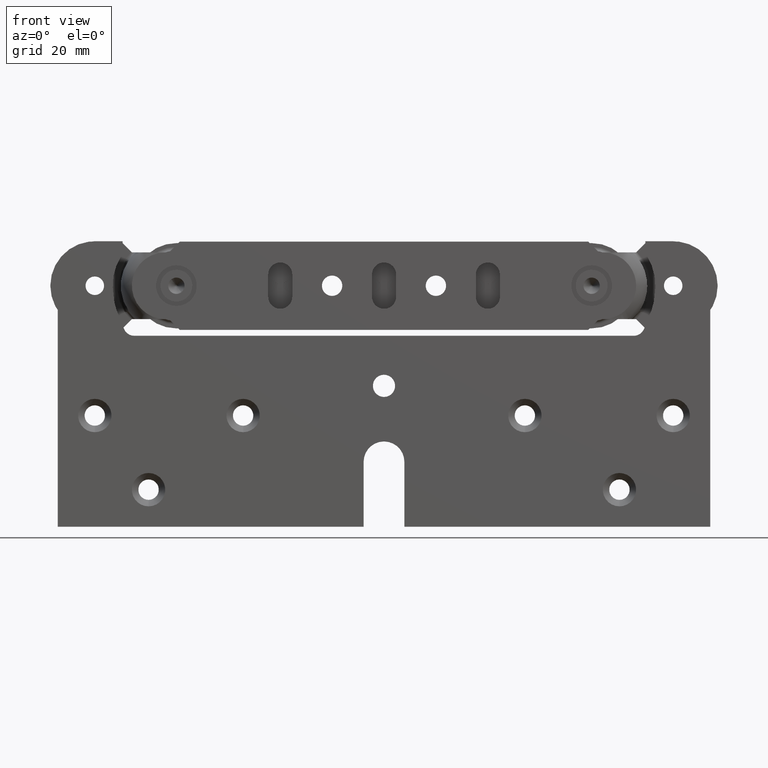
[diagram: clean part render]
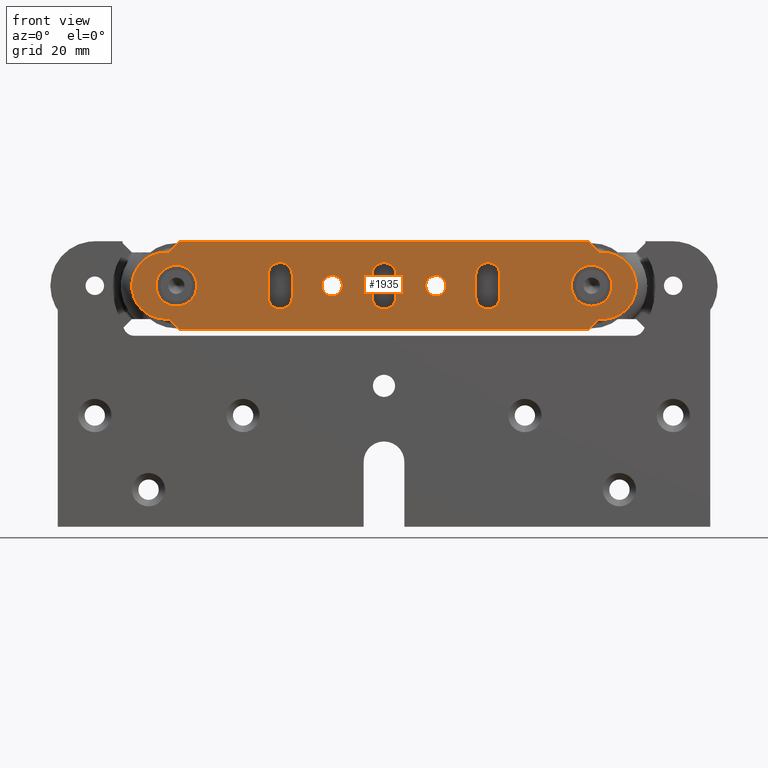
[diagram: same view with one face highlighted and labeled with its STEP entity id]
A machine part, front view. The second image highlights one B-rep face of the part: STEP entity #1935.
In plain terms, the highlighted planar face has unit normal (0, 1, 0).
Its self-contained STEP definition (entity closure, byte-faithful):
#13 = CIRCLE ( 'NONE', #10494, 3.249999999999988898 ) ;
#18 = VERTEX_POINT ( 'NONE', #897 ) ;
#25 = ORIENTED_EDGE ( 'NONE', *, *, #5241, .T. ) ;
#114 = DIRECTION ( 'NONE',  ( 0.000000000000000000, 1.000000000000000000, 0.000000000000000000 ) ) ;
#138 = CIRCLE ( 'NONE', #10620, 5.499999999999998224 ) ;
#189 = DIRECTION ( 'NONE',  ( 0.000000000000000000, 1.000000000000000000, 0.000000000000000000 ) ) ;
#192 = VECTOR ( 'NONE', #4362, 1000.000000000000000 ) ;
#250 = VERTEX_POINT ( 'NONE', #7975 ) ;
#251 = CARTESIAN_POINT ( 'NONE',  ( -67.08913867347112614, 0.000000000000000000, 3.989431880473656378 ) ) ;
#261 = ORIENTED_EDGE ( 'NONE', *, *, #5137, .T. ) ;
#292 = EDGE_CURVE ( 'NONE', #9603, #2884, #10473, .T. ) ;
#390 = VERTEX_POINT ( 'NONE', #10105 ) ;
#403 = EDGE_LOOP ( 'NONE', ( #11651, #6756 ) ) ;
#462 = LINE ( 'NONE', #9818, #6329 ) ;
#498 = VERTEX_POINT ( 'NONE', #8509 ) ;
#534 = CARTESIAN_POINT ( 'NONE',  ( 14.00000000000000000, 0.000000000000000000, -2.750000000000009326 ) ) ;
#617 = CARTESIAN_POINT ( 'NONE',  ( 28.00000000000000355, -1.157291225194246046E-15, -3.000000000000008882 ) ) ;
#629 = CARTESIAN_POINT ( 'NONE',  ( 66.63074449377211295, 2.063901716710476627E-26, -4.944806703775358692 ) ) ;
#638 = EDGE_LOOP ( 'NONE', ( #2999, #2861, #4290, #8538, #2212 ) ) ;
#644 = EDGE_CURVE ( 'NONE', #763, #2277, #6263, .T. ) ;
#740 = CARTESIAN_POINT ( 'NONE',  ( -31.25000000000000000, 0.000000000000000000, 2.999999999999991562 ) ) ;
#763 = VERTEX_POINT ( 'NONE', #4279 ) ;
#828 = CARTESIAN_POINT ( 'NONE',  ( 28.00000000000000355, -1.157291225194246046E-15, -6.249999999999997335 ) ) ;
#836 = CIRCLE ( 'NONE', #2000, 3.249999999999988898 ) ;
#856 = DIRECTION ( 'NONE',  ( -0.000000000000000000, -1.000000000000000000, -0.000000000000000000 ) ) ;
#887 = VERTEX_POINT ( 'NONE', #534 ) ;
#897 = CARTESIAN_POINT ( 'NONE',  ( -58.00000000000013500, 0.000000000000000000, 9.000000000000001776 ) ) ;
#925 = DIRECTION ( 'NONE',  ( 0.000000000000000000, 0.000000000000000000, -1.000000000000000000 ) ) ;
#946 = CARTESIAN_POINT ( 'NONE',  ( -3.249999999999975131, 0.000000000000000000, -3.000000000000008882 ) ) ;
#954 = DIRECTION ( 'NONE',  ( -0.000000000000000000, -1.000000000000000000, -0.000000000000000000 ) ) ;
#1080 = DIRECTION ( 'NONE',  ( -1.000000000000000000, 0.000000000000000000, 0.000000000000000000 ) ) ;
#1081 = VERTEX_POINT ( 'NONE', #10873 ) ;
#1231 = CARTESIAN_POINT ( 'NONE',  ( -61.33141326523641368, 0.000000000000000000, -8.712843378036756903 ) ) ;
#1276 = VECTOR ( 'NONE', #8895, 1000.000000000000000 ) ;
#1298 = CARTESIAN_POINT ( 'NONE',  ( 59.82218478080638135, -1.249353701446252122E-25, 8.999328210712842946 ) ) ;
#1375 = DIRECTION ( 'NONE',  ( -0.000000000000000000, -1.000000000000000000, -0.000000000000000000 ) ) ;
#1417 = CARTESIAN_POINT ( 'NONE',  ( -67.08942090353009746, -0.000000000000000000, -3.988926842928645744 ) ) ;
#1430 = EDGE_CURVE ( 'NONE', #3318, #11327, #10368, .T. ) ;
#1432 = VERTEX_POINT ( 'NONE', #5766 ) ;
#1507 = DIRECTION ( 'NONE',  ( 0.000000000000000000, 0.000000000000000000, -1.000000000000000000 ) ) ;
#1540 = EDGE_CURVE ( 'NONE', #6197, #11327, #4412, .T. ) ;
#1549 = CARTESIAN_POINT ( 'NONE',  ( 63.85961704645576020, -3.645276477764019047E-26, 7.685277940896694915 ) ) ;
#1725 = CARTESIAN_POINT ( 'NONE',  ( -58.00000000000013500, 0.000000000000000000, 9.000000000000001776 ) ) ;
#1745 = LINE ( 'NONE', #9020, #192 ) ;
#1853 = ORIENTED_EDGE ( 'NONE', *, *, #7349, .T. ) ;
#1890 = EDGE_CURVE ( 'NONE', #10086, #887, #9358, .T. ) ;
#1901 = EDGE_CURVE ( 'NONE', #3105, #3667, #2609, .T. ) ;
#1908 = DIRECTION ( 'NONE',  ( -0.000000000000000000, -1.000000000000000000, -0.000000000000000000 ) ) ;
#1928 = CARTESIAN_POINT ( 'NONE',  ( -66.15216632105004635, 0.000000000000000000, 5.493664361256590745 ) ) ;
#1935 = ADVANCED_FACE ( 'NONE', ( #7862, #2485, #6246, #4420, #7986, #5161, #6191, #2595 ), #10856, .F. ) ;
#2000 = AXIS2_PLACEMENT_3D ( 'NONE', #617, #9966, #2562 ) ;
#2022 = EDGE_CURVE ( 'NONE', #1081, #4846, #11649, .T. ) ;
#2029 = VERTEX_POINT ( 'NONE', #946 ) ;
#2042 = VERTEX_POINT ( 'NONE', #828 ) ;
#2065 = CARTESIAN_POINT ( 'NONE',  ( 58.00000000000013500, 0.000000000000000000, 9.000000000000001776 ) ) ;
#2126 = EDGE_CURVE ( 'NONE', #3059, #390, #5091, .T. ) ;
#2134 = DIRECTION ( 'NONE',  ( 0.000000000000000000, 0.000000000000000000, -1.000000000000000000 ) ) ;
#2146 = CARTESIAN_POINT ( 'NONE',  ( -67.53950502998038985, 0.000000000000000000, -2.901103544300949633 ) ) ;
#2177 = LINE ( 'NONE', #4056, #7626 ) ;
#2189 = AXIS2_PLACEMENT_3D ( 'NONE', #8936, #11686, #11923 ) ;
#2212 = ORIENTED_EDGE ( 'NONE', *, *, #5303, .F. ) ;
#2213 = CARTESIAN_POINT ( 'NONE',  ( -64.48932725637970975, 0.000000000000000000, -7.156316161389725927 ) ) ;
#2219 = DIRECTION ( 'NONE',  ( 0.000000000000000000, 1.000000000000000000, 0.000000000000000000 ) ) ;
#2269 = DIRECTION ( 'NONE',  ( 0.000000000000000000, 0.000000000000000000, -1.000000000000000000 ) ) ;
#2277 = VERTEX_POINT ( 'NONE', #10022 ) ;
#2301 = CARTESIAN_POINT ( 'NONE',  ( 0.000000000000000000, -1.157291225194246046E-15, -3.000000000000008882 ) ) ;
#2336 = CARTESIAN_POINT ( 'NONE',  ( -60.17363107597780214, -0.000000000000000000, -8.942031244177568894 ) ) ;
#2356 = CIRCLE ( 'NONE', #4666, 3.249999999999988898 ) ;
#2394 = CARTESIAN_POINT ( 'NONE',  ( -66.15298966305292083, -0.000000000000000000, -5.492554392519242157 ) ) ;
#2426 = CARTESIAN_POINT ( 'NONE',  ( -58.00000000000013500, 0.000000000000000000, -9.000000000000001776 ) ) ;
#2457 = CARTESIAN_POINT ( 'NONE',  ( 68.00000000000032685, 2.063901716710476627E-26, -1.295906966939351923 ) ) ;
#2465 = CARTESIAN_POINT ( 'NONE',  ( 0.000000000000000000, -1.157291225194246046E-15, -3.000000000000008882 ) ) ;
#2485 = FACE_BOUND ( 'NONE', #5615, .T. ) ;
#2533 = DIRECTION ( 'NONE',  ( -0.000000000000000000, -1.000000000000000000, -0.000000000000000000 ) ) ;
#2536 = DIRECTION ( 'NONE',  ( 0.000000000000000000, -0.000000000000000000, 1.000000000000000000 ) ) ;
#2537 = VERTEX_POINT ( 'NONE', #9778 ) ;
#2562 = DIRECTION ( 'NONE',  ( 0.000000000000000000, 0.000000000000000000, -1.000000000000000000 ) ) ;
#2579 = CIRCLE ( 'NONE', #4723, 3.249999999999988898 ) ;
#2586 = AXIS2_PLACEMENT_3D ( 'NONE', #6299, #3504, #2536 ) ;
#2595 = FACE_OUTER_BOUND ( 'NONE', #11524, .T. ) ;
#2609 = B_SPLINE_CURVE_WITH_KNOTS ( 'NONE', 3,
 ( #9615, #1298, #8699, #9857, #1549, #4344, #7063, #5257, #10775, #2457, #11748, #629, #8938, #8024, #6165, #4179, #8904, #9819 ),
 .UNSPECIFIED., .F., .F.,
 ( 4, 2, 2, 2, 2, 2, 2, 2, 4 ),
 ( 0.000000000000000000, 0.08761193808473884126, 0.2250746253898257554, 0.3625373126949124059, 0.4999999999999990008, 0.6374626873050855957, 0.7749253746101724127, 0.9123880619152592297, 1.000000000000000000 ),
 .UNSPECIFIED. ) ;
#2715 = CARTESIAN_POINT ( 'NONE',  ( -63.50568478773813297, 0.000000000000000000, 7.812332455624505734 ) ) ;
#2755 = ORIENTED_EDGE ( 'NONE', *, *, #2022, .T. ) ;
#2830 = CARTESIAN_POINT ( 'NONE',  ( -64.49008897876312574, -0.000000000000000000, 7.155888933543343100 ) ) ;
#2861 = ORIENTED_EDGE ( 'NONE', *, *, #5356, .F. ) ;
#2871 = DIRECTION ( 'NONE',  ( 0.000000000000000000, 0.000000000000000000, -1.000000000000000000 ) ) ;
#2884 = VERTEX_POINT ( 'NONE', #3873 ) ;
#2889 = LINE ( 'NONE', #11147, #6546 ) ;
#2893 = CARTESIAN_POINT ( 'NONE',  ( 0.000000000000000000, -1.157291225194246046E-15, -6.249999999999997335 ) ) ;
#2932 = VERTEX_POINT ( 'NONE', #8665 ) ;
#2937 = EDGE_CURVE ( 'NONE', #4121, #5551, #138, .T. ) ;
#2946 = ORIENTED_EDGE ( 'NONE', *, *, #10839, .T. ) ;
#2952 = ORIENTED_EDGE ( 'NONE', *, *, #8455, .T. ) ;
#2999 = ORIENTED_EDGE ( 'NONE', *, *, #11573, .F. ) ;
#3008 = EDGE_LOOP ( 'NONE', ( #11708, #6656, #7764, #2952, #3773 ) ) ;
#3032 = ORIENTED_EDGE ( 'NONE', *, *, #11757, .T. ) ;
#3057 = CARTESIAN_POINT ( 'NONE',  ( -67.99996593793157729, 0.000000000000000000, 0.5884903178352727249 ) ) ;
#3059 = VERTEX_POINT ( 'NONE', #10798 ) ;
#3060 = DIRECTION ( 'NONE',  ( -0.000000000000000000, -0.000000000000000000, -1.000000000000000000 ) ) ;
#3080 = VERTEX_POINT ( 'NONE', #7196 ) ;
#3100 = CARTESIAN_POINT ( 'NONE',  ( -28.00000000000000355, -1.157291225194246046E-15, -3.000000000000008882 ) ) ;
#3105 = VERTEX_POINT ( 'NONE', #11774 ) ;
#3188 = VERTEX_POINT ( 'NONE', #2893 ) ;
#3207 = ORIENTED_EDGE ( 'NONE', *, *, #1890, .T. ) ;
#3240 = CARTESIAN_POINT ( 'NONE',  ( -59.58821667872939543, -0.000000000000000000, -8.999328210712770115 ) ) ;
#3256 = LINE ( 'NONE', #11635, #7673 ) ;
#3302 = CARTESIAN_POINT ( 'NONE',  ( -64.94544805840131119, -0.000000000000000000, -6.782465164837899074 ) ) ;
#3316 = DIRECTION ( 'NONE',  ( 1.000000000000000000, 0.000000000000000000, 0.000000000000000000 ) ) ;
#3318 = VERTEX_POINT ( 'NONE', #6829 ) ;
#3330 = CARTESIAN_POINT ( 'NONE',  ( 58.00000000000013500, 0.000000000000000000, -9.000000000000001776 ) ) ;
#3447 = AXIS2_PLACEMENT_3D ( 'NONE', #2301, #1375, #8776 ) ;
#3499 = CIRCLE ( 'NONE', #9892, 5.499999999999998224 ) ;
#3504 = DIRECTION ( 'NONE',  ( 0.000000000000000000, 1.000000000000000000, 0.000000000000000000 ) ) ;
#3627 = CARTESIAN_POINT ( 'NONE',  ( -60.17378314488630053, -0.000000000000000000, 8.941932463536899078 ) ) ;
#3667 = VERTEX_POINT ( 'NONE', #9542 ) ;
#3678 = DIRECTION ( 'NONE',  ( 1.000000000000000000, -0.000000000000000000, 0.000000000000000000 ) ) ;
#3722 = LINE ( 'NONE', #7294, #9942 ) ;
#3773 = ORIENTED_EDGE ( 'NONE', *, *, #8844, .F. ) ;
#3873 = CARTESIAN_POINT ( 'NONE',  ( 31.24999999999999289, -1.157291225194246046E-15, -3.000000000000008882 ) ) ;
#3910 = AXIS2_PLACEMENT_3D ( 'NONE', #11489, #10581, #2269 ) ;
#3917 = DIRECTION ( 'NONE',  ( -1.000000000000000000, 0.000000000000000000, 0.000000000000000000 ) ) ;
#3955 = VECTOR ( 'NONE', #11379, 1000.000000000000000 ) ;
#3965 = CARTESIAN_POINT ( 'NONE',  ( -67.53978726003936117, -0.000000000000000000, 2.900598506755788897 ) ) ;
#4056 = CARTESIAN_POINT ( 'NONE',  ( 67.99999999999997158, 0.000000000000000000, 9.000000000000001776 ) ) ;
#4121 = VERTEX_POINT ( 'NONE', #5949 ) ;
#4130 = CARTESIAN_POINT ( 'NONE',  ( -56.00000000000000000, 3.851859888774471706E-31, 5.499999999999970690 ) ) ;
#4179 = CARTESIAN_POINT ( 'NONE',  ( 60.64802684624113738, 9.359021182132724620E-26, -8.886292606168272101 ) ) ;
#4244 = ORIENTED_EDGE ( 'NONE', *, *, #11366, .T. ) ;
#4279 = CARTESIAN_POINT ( 'NONE',  ( -28.00000000000000355, -1.157291225194246046E-15, -6.249999999999997335 ) ) ;
#4290 = ORIENTED_EDGE ( 'NONE', *, *, #292, .T. ) ;
#4344 = CARTESIAN_POINT ( 'NONE',  ( 65.83044782348788715, 7.773079911184959099E-26, 6.002029439904346120 ) ) ;
#4362 = DIRECTION ( 'NONE',  ( -0.000000000000000000, -0.000000000000000000, -1.000000000000000000 ) ) ;
#4412 = LINE ( 'NONE', #11998, #6754 ) ;
#4420 = FACE_BOUND ( 'NONE', #403, .T. ) ;
#4666 = AXIS2_PLACEMENT_3D ( 'NONE', #2465, #856, #6174 ) ;
#4716 = CARTESIAN_POINT ( 'NONE',  ( -66.81156534575906392, -0.000000000000000000, 4.508163780645715768 ) ) ;
#4723 = AXIS2_PLACEMENT_3D ( 'NONE', #9113, #1908, #2871 ) ;
#4771 = ORIENTED_EDGE ( 'NONE', *, *, #11227, .F. ) ;
#4803 = DIRECTION ( 'NONE',  ( -0.000000000000000000, -1.000000000000000000, -0.000000000000000000 ) ) ;
#4814 = DIRECTION ( 'NONE',  ( 0.000000000000000000, 0.000000000000000000, 1.000000000000000000 ) ) ;
#4846 = VERTEX_POINT ( 'NONE', #8689 ) ;
#4850 = CARTESIAN_POINT ( 'NONE',  ( 56.00000000000000000, 3.851859888774471706E-31, 7.129602656142611421E-15 ) ) ;
#4867 = EDGE_CURVE ( 'NONE', #8513, #9246, #10122, .T. ) ;
#4903 = LINE ( 'NONE', #8660, #5134 ) ;
#4927 = AXIS2_PLACEMENT_3D ( 'NONE', #10183, #954, #9324 ) ;
#4950 = CARTESIAN_POINT ( 'NONE',  ( -24.75000000000001421, -1.157291225194246046E-15, 2.999999999999991562 ) ) ;
#4957 = ORIENTED_EDGE ( 'NONE', *, *, #1540, .F. ) ;
#5091 = B_SPLINE_CURVE_WITH_KNOTS ( 'NONE', 3,
 ( #9259, #10064, #3627, #10975, #7439, #5454, #2715, #2830, #6535, #10229, #1928, #4716, #251, #3965, #7653, #11368, #3057, #6755, #7838, #9726, #2146, #1417, #9791, #2394, #6936, #3302, #2213, #10645, #5975, #10706, #1231, #2336, #3240, #5850 ),
 .UNSPECIFIED., .F., .F.,
 ( 4, 2, 2, 2, 2, 2, 2, 2, 2, 2, 2, 2, 2, 2, 2, 2, 4 ),
 ( 0.000000000000000000, 0.06250000000000000000, 0.1250000000000000000, 0.1875000000000000000, 0.2500000000000000000, 0.3125000000000000000, 0.3750000000000000000, 0.4375000000000000000, 0.5000000000000000000, 0.5625000000000000000, 0.6250000000000000000, 0.6875000000000000000, 0.7500000000000000000, 0.8125000000000000000, 0.8750000000000000000, 0.9375000000000000000, 1.000000000000000000 ),
 .UNSPECIFIED. ) ;
#5100 = DIRECTION ( 'NONE',  ( -0.000000000000000000, -1.000000000000000000, -0.000000000000000000 ) ) ;
#5110 = DIRECTION ( 'NONE',  ( 0.000000000000000000, 0.000000000000000000, -1.000000000000000000 ) ) ;
#5111 = ORIENTED_EDGE ( 'NONE', *, *, #12002, .T. ) ;
#5134 = VECTOR ( 'NONE', #7739, 1000.000000000000000 ) ;
#5137 = EDGE_CURVE ( 'NONE', #7824, #7706, #9351, .T. ) ;
#5161 = FACE_BOUND ( 'NONE', #3008, .T. ) ;
#5170 = DIRECTION ( 'NONE',  ( -0.000000000000000000, -1.000000000000000000, -0.000000000000000000 ) ) ;
#5241 = EDGE_CURVE ( 'NONE', #4846, #3667, #3722, .T. ) ;
#5257 = CARTESIAN_POINT ( 'NONE',  ( 67.71583263507992001, 2.063901716710476627E-26, 2.591068571898593742 ) ) ;
#5303 = EDGE_CURVE ( 'NONE', #1432, #2042, #2579, .T. ) ;
#5334 = CIRCLE ( 'NONE', #6864, 2.749999999999999112 ) ;
#5356 = EDGE_CURVE ( 'NONE', #9603, #2932, #7228, .T. ) ;
#5404 = DIRECTION ( 'NONE',  ( 0.000000000000000000, 0.000000000000000000, -1.000000000000000000 ) ) ;
#5454 = CARTESIAN_POINT ( 'NONE',  ( -62.98696265077281708, -0.000000000000000000, 8.089380586572541887 ) ) ;
#5506 = EDGE_CURVE ( 'NONE', #9246, #8513, #9750, .T. ) ;
#5521 = DIRECTION ( 'NONE',  ( -0.000000000000000000, -1.000000000000000000, -0.000000000000000000 ) ) ;
#5551 = VERTEX_POINT ( 'NONE', #6714 ) ;
#5552 = CARTESIAN_POINT ( 'NONE',  ( 28.00000000000000355, -1.157291225194246046E-15, 2.999999999999991562 ) ) ;
#5615 = EDGE_LOOP ( 'NONE', ( #1853, #261 ) ) ;
#5766 = CARTESIAN_POINT ( 'NONE',  ( 24.75000000000002132, 0.000000000000000000, -3.000000000000008882 ) ) ;
#5834 = DIRECTION ( 'NONE',  ( 0.000000000000000000, 1.000000000000000000, 0.000000000000000000 ) ) ;
#5850 = CARTESIAN_POINT ( 'NONE',  ( -58.99627897886185934, 0.000000000000000000, -9.000000000000001776 ) ) ;
#5864 = EDGE_CURVE ( 'NONE', #2029, #3188, #11191, .T. ) ;
#5918 = DIRECTION ( 'NONE',  ( 0.000000000000000000, 0.000000000000000000, 1.000000000000000000 ) ) ;
#5948 = VECTOR ( 'NONE', #3060, 1000.000000000000000 ) ;
#5949 = CARTESIAN_POINT ( 'NONE',  ( 56.00000000000000000, 3.851859888774471706E-31, -5.499999999999991118 ) ) ;
#5975 = CARTESIAN_POINT ( 'NONE',  ( -62.98769299885655215, 0.000000000000000000, -8.089005070884436321 ) ) ;
#5985 = CARTESIAN_POINT ( 'NONE',  ( -31.24999999999999289, -1.157291225194246046E-15, 2.999999999999991562 ) ) ;
#6143 = VERTEX_POINT ( 'NONE', #5985 ) ;
#6165 = CARTESIAN_POINT ( 'NONE',  ( 62.69021649507773475, -9.336832486916968819E-26, -8.310335557994061872 ) ) ;
#6174 = DIRECTION ( 'NONE',  ( 0.000000000000000000, 0.000000000000000000, -1.000000000000000000 ) ) ;
#6191 = FACE_BOUND ( 'NONE', #8830, .T. ) ;
#6197 = VERTEX_POINT ( 'NONE', #9002 ) ;
#6208 = VERTEX_POINT ( 'NONE', #6454 ) ;
#6246 = FACE_BOUND ( 'NONE', #11039, .T. ) ;
#6263 = CIRCLE ( 'NONE', #2189, 3.249999999999988898 ) ;
#6299 = CARTESIAN_POINT ( 'NONE',  ( -57.24999999999999289, 0.000000000000000000, 0.000000000000000000 ) ) ;
#6329 = VECTOR ( 'NONE', #10738, 1000.000000000000000 ) ;
#6348 = VECTOR ( 'NONE', #7288, 1000.000000000000114 ) ;
#6377 = VECTOR ( 'NONE', #11408, 1000.000000000000114 ) ;
#6405 = ORIENTED_EDGE ( 'NONE', *, *, #9159, .F. ) ;
#6454 = CARTESIAN_POINT ( 'NONE',  ( -31.25000000000000000, 0.000000000000000000, -3.000000000000008882 ) ) ;
#6517 = DIRECTION ( 'NONE',  ( 1.000000000000000000, -0.000000000000000000, -0.000000000000000000 ) ) ;
#6518 = CARTESIAN_POINT ( 'NONE',  ( -24.75000000000001421, -1.157291225194246046E-15, 2.999999999999991562 ) ) ;
#6535 = CARTESIAN_POINT ( 'NONE',  ( -64.94537030785878073, 0.000000000000000000, 6.782447648398840734 ) ) ;
#6546 = VECTOR ( 'NONE', #3917, 1000.000000000000000 ) ;
#6631 = VECTOR ( 'NONE', #7028, 1000.000000000000114 ) ;
#6640 = ORIENTED_EDGE ( 'NONE', *, *, #1430, .T. ) ;
#6642 = ORIENTED_EDGE ( 'NONE', *, *, #10474, .T. ) ;
#6656 = ORIENTED_EDGE ( 'NONE', *, *, #10885, .F. ) ;
#6660 = AXIS2_PLACEMENT_3D ( 'NONE', #10003, #5521, #5404 ) ;
#6663 = CIRCLE ( 'NONE', #11517, 2.750000000000000888 ) ;
#6714 = CARTESIAN_POINT ( 'NONE',  ( 56.00000000000000000, 3.851859888774471706E-31, 5.500000000000005329 ) ) ;
#6725 = DIRECTION ( 'NONE',  ( 0.000000000000000000, 0.000000000000000000, -1.000000000000000000 ) ) ;
#6754 = VECTOR ( 'NONE', #3678, 1000.000000000000000 ) ;
#6755 = CARTESIAN_POINT ( 'NONE',  ( -68.00003406206846535, -0.000000000000000000, -0.5884903178352934860 ) ) ;
#6756 = ORIENTED_EDGE ( 'NONE', *, *, #5506, .F. ) ;
#6815 = CARTESIAN_POINT ( 'NONE',  ( 14.00000000000000000, 0.000000000000000000, -8.572527594031471415E-15 ) ) ;
#6829 = CARTESIAN_POINT ( 'NONE',  ( 58.00000000000013500, 0.000000000000000000, 9.000000000000001776 ) ) ;
#6864 = AXIS2_PLACEMENT_3D ( 'NONE', #9543, #189, #4814 ) ;
#6936 = CARTESIAN_POINT ( 'NONE',  ( -65.77931271067102159, 0.000000000000000000, -5.947811423890013494 ) ) ;
#7028 = DIRECTION ( 'NONE',  ( 0.7071067811865632269, -0.000000000000000000, 0.7071067811865318076 ) ) ;
#7035 = AXIS2_PLACEMENT_3D ( 'NONE', #10441, #114, #9471 ) ;
#7063 = CARTESIAN_POINT ( 'NONE',  ( 66.63074449377212716, 2.063901716710476627E-26, 4.944806703775318724 ) ) ;
#7083 = EDGE_CURVE ( 'NONE', #498, #3080, #9382, .T. ) ;
#7091 = EDGE_CURVE ( 'NONE', #7313, #2277, #11439, .T. ) ;
#7196 = CARTESIAN_POINT ( 'NONE',  ( -3.249999999999988898, -1.157291225194246046E-15, 2.999999999999991562 ) ) ;
#7228 = CIRCLE ( 'NONE', #10729, 3.249999999999988898 ) ;
#7288 = DIRECTION ( 'NONE',  ( -0.7071067811865632269, -0.000000000000000000, -0.7071067811865318076 ) ) ;
#7294 = CARTESIAN_POINT ( 'NONE',  ( 67.99999999999997158, 0.000000000000000000, -9.000000000000001776 ) ) ;
#7313 = VERTEX_POINT ( 'NONE', #6518 ) ;
#7349 = EDGE_CURVE ( 'NONE', #7706, #7824, #5334, .T. ) ;
#7382 = ORIENTED_EDGE ( 'NONE', *, *, #2937, .F. ) ;
#7439 = CARTESIAN_POINT ( 'NONE',  ( -61.89555761923860899, 0.000000000000000000, 8.541743534208302790 ) ) ;
#7495 = ORIENTED_EDGE ( 'NONE', *, *, #1901, .F. ) ;
#7526 = CARTESIAN_POINT ( 'NONE',  ( 14.00000000000000000, 0.000000000000000000, -8.572527594031471415E-15 ) ) ;
#7548 = CARTESIAN_POINT ( 'NONE',  ( 55.09999999999999432, 0.000000000000000000, 11.90000000000000391 ) ) ;
#7594 = ORIENTED_EDGE ( 'NONE', *, *, #10875, .T. ) ;
#7596 = CARTESIAN_POINT ( 'NONE',  ( 24.75000000000002132, 0.000000000000000000, 2.999999999999991562 ) ) ;
#7626 = VECTOR ( 'NONE', #1080, 1000.000000000000000 ) ;
#7653 = CARTESIAN_POINT ( 'NONE',  ( -67.71035352810039853, 0.000000000000000000, 2.337681762989701095 ) ) ;
#7673 = VECTOR ( 'NONE', #3316, 1000.000000000000000 ) ;
#7706 = VERTEX_POINT ( 'NONE', #11913 ) ;
#7739 = DIRECTION ( 'NONE',  ( -1.000000000000000000, -0.000000000000000000, -0.000000000000000000 ) ) ;
#7764 = ORIENTED_EDGE ( 'NONE', *, *, #7083, .F. ) ;
#7809 = LINE ( 'NONE', #2426, #11186 ) ;
#7824 = VERTEX_POINT ( 'NONE', #10195 ) ;
#7838 = CARTESIAN_POINT ( 'NONE',  ( -67.94182002807193044, 0.000000000000000000, -1.175258081422010381 ) ) ;
#7860 = CARTESIAN_POINT ( 'NONE',  ( 31.24999999999999289, -1.157291225194246046E-15, 2.999999999999991562 ) ) ;
#7862 = FACE_BOUND ( 'NONE', #10047, .T. ) ;
#7894 = CARTESIAN_POINT ( 'NONE',  ( 14.00000000000000000, 0.000000000000000000, 2.749999999999992006 ) ) ;
#7975 = CARTESIAN_POINT ( 'NONE',  ( 3.249999999999988898, -1.157291225194246046E-15, -3.000000000000000000 ) ) ;
#7986 = FACE_BOUND ( 'NONE', #638, .T. ) ;
#8024 = CARTESIAN_POINT ( 'NONE',  ( 63.85961704644678605, 2.063901716710476627E-26, -7.685277940896679816 ) ) ;
#8055 = CARTESIAN_POINT ( 'NONE',  ( -28.00000000000000355, -1.157291225194246046E-15, 2.999999999999991562 ) ) ;
#8164 = ORIENTED_EDGE ( 'NONE', *, *, #8479, .F. ) ;
#8343 = ORIENTED_EDGE ( 'NONE', *, *, #11766, .F. ) ;
#8402 = AXIS2_PLACEMENT_3D ( 'NONE', #3100, #4803, #2134 ) ;
#8403 = CARTESIAN_POINT ( 'NONE',  ( -56.00000000000000000, 3.851859888774471706E-31, -5.500000000000024869 ) ) ;
#8455 = EDGE_CURVE ( 'NONE', #498, #250, #1745, .T. ) ;
#8479 = EDGE_CURVE ( 'NONE', #5551, #4121, #3499, .T. ) ;
#8509 = CARTESIAN_POINT ( 'NONE',  ( 3.249999999999988898, -1.157291225194246046E-15, 3.000000000000000000 ) ) ;
#8513 = VERTEX_POINT ( 'NONE', #8403 ) ;
#8538 = ORIENTED_EDGE ( 'NONE', *, *, #10130, .F. ) ;
#8577 = AXIS2_PLACEMENT_3D ( 'NONE', #6815, #2219, #5918 ) ;
#8660 = CARTESIAN_POINT ( 'NONE',  ( -67.99999999999997158, 0.000000000000000000, 9.000000000000001776 ) ) ;
#8665 = CARTESIAN_POINT ( 'NONE',  ( 24.75000000000001421, -1.157291225194246046E-15, 2.999999999999991562 ) ) ;
#8676 = DIRECTION ( 'NONE',  ( 0.000000000000000000, 0.000000000000000000, 1.000000000000000000 ) ) ;
#8679 = VERTEX_POINT ( 'NONE', #10466 ) ;
#8689 = CARTESIAN_POINT ( 'NONE',  ( 58.00000000000013500, 0.000000000000000000, -9.000000000000001776 ) ) ;
#8699 = CARTESIAN_POINT ( 'NONE',  ( 60.64802684624405060, -5.213595563390065040E-26, 8.886292606168257890 ) ) ;
#8773 = CARTESIAN_POINT ( 'NONE',  ( 31.24999999999999289, -1.157291225194246046E-15, 2.999999999999991562 ) ) ;
#8776 = DIRECTION ( 'NONE',  ( 0.000000000000000000, 0.000000000000000000, -1.000000000000000000 ) ) ;
#8830 = EDGE_LOOP ( 'NONE', ( #8343, #6405, #9408, #10287, #11432 ) ) ;
#8844 = EDGE_CURVE ( 'NONE', #3188, #250, #2356, .T. ) ;
#8895 = DIRECTION ( 'NONE',  ( -0.000000000000000000, -0.000000000000000000, -1.000000000000000000 ) ) ;
#8904 = CARTESIAN_POINT ( 'NONE',  ( 59.82218478080559976, 7.352724279412131273E-26, -8.999328210713068543 ) ) ;
#8933 = LINE ( 'NONE', #1725, #6348 ) ;
#8936 = CARTESIAN_POINT ( 'NONE',  ( -28.00000000000000355, -1.157291225194246046E-15, -3.000000000000008882 ) ) ;
#8938 = CARTESIAN_POINT ( 'NONE',  ( 65.83044782349691104, 2.063901716710476627E-26, -6.002029439904331909 ) ) ;
#9002 = CARTESIAN_POINT ( 'NONE',  ( -55.10000000000000142, 0.000000000000000000, 11.90000000000000036 ) ) ;
#9020 = CARTESIAN_POINT ( 'NONE',  ( 3.249999999999988898, -1.157291225194246046E-15, 3.000000000000000000 ) ) ;
#9051 = LINE ( 'NONE', #740, #9441 ) ;
#9113 = CARTESIAN_POINT ( 'NONE',  ( 28.00000000000000355, -1.157291225194246046E-15, -3.000000000000008882 ) ) ;
#9159 = EDGE_CURVE ( 'NONE', #7313, #6143, #13, .T. ) ;
#9237 = DIRECTION ( 'NONE',  ( -0.000000000000000000, -1.000000000000000000, -0.000000000000000000 ) ) ;
#9246 = VERTEX_POINT ( 'NONE', #4130 ) ;
#9259 = CARTESIAN_POINT ( 'NONE',  ( -58.99627897886158934, 0.000000000000000000, 8.999664105356266930 ) ) ;
#9324 = DIRECTION ( 'NONE',  ( 0.000000000000000000, 0.000000000000000000, -1.000000000000000000 ) ) ;
#9351 = CIRCLE ( 'NONE', #7035, 2.749999999999999112 ) ;
#9358 = CIRCLE ( 'NONE', #8577, 2.750000000000000888 ) ;
#9363 = LINE ( 'NONE', #7596, #5948 ) ;
#9382 = CIRCLE ( 'NONE', #4927, 3.249999999999988898 ) ;
#9408 = ORIENTED_EDGE ( 'NONE', *, *, #7091, .T. ) ;
#9441 = VECTOR ( 'NONE', #11745, 1000.000000000000000 ) ;
#9471 = DIRECTION ( 'NONE',  ( 0.000000000000000000, 0.000000000000000000, 1.000000000000000000 ) ) ;
#9542 = CARTESIAN_POINT ( 'NONE',  ( 58.99627897886185224, 0.000000000000000000, -9.000000000000001776 ) ) ;
#9543 = CARTESIAN_POINT ( 'NONE',  ( -14.00000000000000000, 0.000000000000000000, 0.000000000000000000 ) ) ;
#9603 = VERTEX_POINT ( 'NONE', #7860 ) ;
#9615 = CARTESIAN_POINT ( 'NONE',  ( 58.99627897886159644, 0.000000000000000000, 8.999832052678133465 ) ) ;
#9726 = CARTESIAN_POINT ( 'NONE',  ( -67.71056328351041032, -0.000000000000000000, -2.336971768620776935 ) ) ;
#9750 = CIRCLE ( 'NONE', #6660, 5.499999999999998224 ) ;
#9778 = CARTESIAN_POINT ( 'NONE',  ( -58.00000000000013500, 0.000000000000000000, -9.000000000000001776 ) ) ;
#9791 = CARTESIAN_POINT ( 'NONE',  ( -66.81074200376069427, 0.000000000000000000, -4.509273749383186924 ) ) ;
#9818 = CARTESIAN_POINT ( 'NONE',  ( -3.249999999999975131, 0.000000000000000000, 2.999999999999991562 ) ) ;
#9819 = CARTESIAN_POINT ( 'NONE',  ( 58.99627897886185224, 0.000000000000000000, -9.000000000000001776 ) ) ;
#9857 = CARTESIAN_POINT ( 'NONE',  ( 62.69021649507326543, 1.348225810565946769E-25, 8.310335557994054767 ) ) ;
#9892 = AXIS2_PLACEMENT_3D ( 'NONE', #10793, #2533, #1507 ) ;
#9942 = VECTOR ( 'NONE', #6517, 1000.000000000000000 ) ;
#9966 = DIRECTION ( 'NONE',  ( -0.000000000000000000, -1.000000000000000000, -0.000000000000000000 ) ) ;
#10003 = CARTESIAN_POINT ( 'NONE',  ( -56.00000000000000000, 3.851859888774471706E-31, -2.716050771998326793E-14 ) ) ;
#10022 = CARTESIAN_POINT ( 'NONE',  ( -24.75000000000001421, -1.157291225194246046E-15, -3.000000000000008882 ) ) ;
#10047 = EDGE_LOOP ( 'NONE', ( #3207, #6642 ) ) ;
#10064 = CARTESIAN_POINT ( 'NONE',  ( -59.58786944080707570, 0.000000000000000000, 8.999328210712530307 ) ) ;
#10086 = VERTEX_POINT ( 'NONE', #7894 ) ;
#10105 = CARTESIAN_POINT ( 'NONE',  ( -58.99627897886185934, 0.000000000000000000, -9.000000000000001776 ) ) ;
#10122 = CIRCLE ( 'NONE', #3910, 5.499999999999998224 ) ;
#10130 = EDGE_CURVE ( 'NONE', #2042, #2884, #836, .T. ) ;
#10183 = CARTESIAN_POINT ( 'NONE',  ( 0.000000000000000000, -1.157291225194246046E-15, 2.999999999999991562 ) ) ;
#10195 = CARTESIAN_POINT ( 'NONE',  ( -14.00000000000000000, 0.000000000000000000, -2.749999999999999112 ) ) ;
#10229 = CARTESIAN_POINT ( 'NONE',  ( -65.77939046120705768, -0.000000000000000000, 5.947828940329038971 ) ) ;
#10287 = ORIENTED_EDGE ( 'NONE', *, *, #644, .F. ) ;
#10368 = LINE ( 'NONE', #2065, #6377 ) ;
#10441 = CARTESIAN_POINT ( 'NONE',  ( -14.00000000000000000, 0.000000000000000000, 0.000000000000000000 ) ) ;
#10447 = EDGE_CURVE ( 'NONE', #6208, #763, #11903, .T. ) ;
#10466 = CARTESIAN_POINT ( 'NONE',  ( -55.10000000000000142, 0.000000000000000000, -11.90000000000000391 ) ) ;
#10473 = LINE ( 'NONE', #8773, #1276 ) ;
#10474 = EDGE_CURVE ( 'NONE', #887, #10086, #6663, .T. ) ;
#10494 = AXIS2_PLACEMENT_3D ( 'NONE', #8055, #5170, #5110 ) ;
#10581 = DIRECTION ( 'NONE',  ( -0.000000000000000000, -1.000000000000000000, -0.000000000000000000 ) ) ;
#10620 = AXIS2_PLACEMENT_3D ( 'NONE', #4850, #5100, #6725 ) ;
#10645 = CARTESIAN_POINT ( 'NONE',  ( -63.50644651011521091, -0.000000000000000000, -7.811905227778144223 ) ) ;
#10706 = CARTESIAN_POINT ( 'NONE',  ( -61.89482727115572658, -0.000000000000000000, -8.542119049896440330 ) ) ;
#10729 = AXIS2_PLACEMENT_3D ( 'NONE', #5552, #9237, #925 ) ;
#10738 = DIRECTION ( 'NONE',  ( -0.000000000000000000, -0.000000000000000000, -1.000000000000000000 ) ) ;
#10775 = CARTESIAN_POINT ( 'NONE',  ( 68.00000000000032685, 2.063901716710476627E-26, 1.295906966939364358 ) ) ;
#10793 = CARTESIAN_POINT ( 'NONE',  ( 56.00000000000000000, 3.851859888774471706E-31, 7.129602656142611421E-15 ) ) ;
#10798 = CARTESIAN_POINT ( 'NONE',  ( -58.99627897886158934, 0.000000000000000000, 8.999664105356266930 ) ) ;
#10839 = EDGE_CURVE ( 'NONE', #3105, #3318, #2177, .T. ) ;
#10856 = PLANE ( 'NONE',  #2586 ) ;
#10858 = DIRECTION ( 'NONE',  ( 0.7071067811865632269, 0.000000000000000000, -0.7071067811865318076 ) ) ;
#10873 = CARTESIAN_POINT ( 'NONE',  ( 55.09999999999999432, 0.000000000000000000, -11.90000000000000391 ) ) ;
#10875 = EDGE_CURVE ( 'NONE', #18, #3059, #4903, .T. ) ;
#10885 = EDGE_CURVE ( 'NONE', #3080, #2029, #462, .T. ) ;
#10975 = CARTESIAN_POINT ( 'NONE',  ( -61.33126119633075746, -0.000000000000000000, 8.712942158677309479 ) ) ;
#11039 = EDGE_LOOP ( 'NONE', ( #7382, #8164 ) ) ;
#11147 = CARTESIAN_POINT ( 'NONE',  ( -57.24999999999999289, 0.000000000000000000, -11.90000000000000036 ) ) ;
#11186 = VECTOR ( 'NONE', #10858, 1000.000000000000114 ) ;
#11191 = CIRCLE ( 'NONE', #3447, 3.249999999999988898 ) ;
#11227 = EDGE_CURVE ( 'NONE', #1081, #8679, #2889, .T. ) ;
#11327 = VERTEX_POINT ( 'NONE', #7548 ) ;
#11361 = ORIENTED_EDGE ( 'NONE', *, *, #2126, .T. ) ;
#11366 = EDGE_CURVE ( 'NONE', #390, #2537, #3256, .T. ) ;
#11368 = CARTESIAN_POINT ( 'NONE',  ( -67.94202978348194222, -0.000000000000000000, 1.174548087053004064 ) ) ;
#11379 = DIRECTION ( 'NONE',  ( -0.000000000000000000, -0.000000000000000000, -1.000000000000000000 ) ) ;
#11408 = DIRECTION ( 'NONE',  ( -0.7071067811865632269, 0.000000000000000000, 0.7071067811865318076 ) ) ;
#11432 = ORIENTED_EDGE ( 'NONE', *, *, #10447, .F. ) ;
#11439 = LINE ( 'NONE', #4950, #3955 ) ;
#11489 = CARTESIAN_POINT ( 'NONE',  ( -56.00000000000000000, 3.851859888774471706E-31, -2.716050771998326793E-14 ) ) ;
#11517 = AXIS2_PLACEMENT_3D ( 'NONE', #7526, #5834, #8676 ) ;
#11524 = EDGE_LOOP ( 'NONE', ( #4957, #3032, #7594, #11361, #4244, #5111, #4771, #2755, #25, #7495, #2946, #6640 ) ) ;
#11573 = EDGE_CURVE ( 'NONE', #2932, #1432, #9363, .T. ) ;
#11635 = CARTESIAN_POINT ( 'NONE',  ( -67.99999999999997158, 0.000000000000000000, -9.000000000000001776 ) ) ;
#11649 = LINE ( 'NONE', #3330, #6631 ) ;
#11651 = ORIENTED_EDGE ( 'NONE', *, *, #4867, .F. ) ;
#11686 = DIRECTION ( 'NONE',  ( -0.000000000000000000, -1.000000000000000000, -0.000000000000000000 ) ) ;
#11708 = ORIENTED_EDGE ( 'NONE', *, *, #5864, .F. ) ;
#11745 = DIRECTION ( 'NONE',  ( -0.000000000000000000, -0.000000000000000000, -1.000000000000000000 ) ) ;
#11748 = CARTESIAN_POINT ( 'NONE',  ( 67.71583263507990580, 2.063901716710476627E-26, -2.591068571898632822 ) ) ;
#11757 = EDGE_CURVE ( 'NONE', #6197, #18, #8933, .T. ) ;
#11766 = EDGE_CURVE ( 'NONE', #6143, #6208, #9051, .T. ) ;
#11774 = CARTESIAN_POINT ( 'NONE',  ( 58.99627897886159644, 0.000000000000000000, 8.999832052678133465 ) ) ;
#11903 = CIRCLE ( 'NONE', #8402, 3.249999999999988898 ) ;
#11913 = CARTESIAN_POINT ( 'NONE',  ( -14.00000000000000000, 0.000000000000000000, 2.749999999999999112 ) ) ;
#11923 = DIRECTION ( 'NONE',  ( 0.000000000000000000, 0.000000000000000000, -1.000000000000000000 ) ) ;
#11998 = CARTESIAN_POINT ( 'NONE',  ( -57.24999999999999289, 0.000000000000000000, 11.90000000000000036 ) ) ;
#12002 = EDGE_CURVE ( 'NONE', #2537, #8679, #7809, .T. ) ;